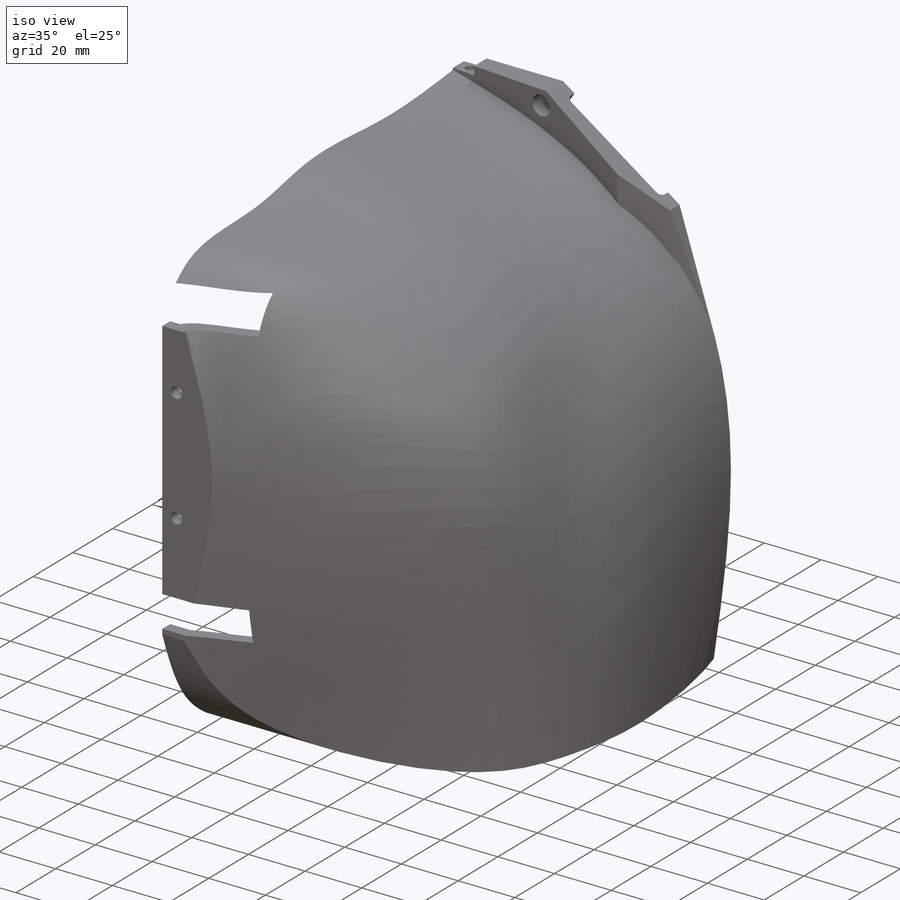
[diagram: iso view]
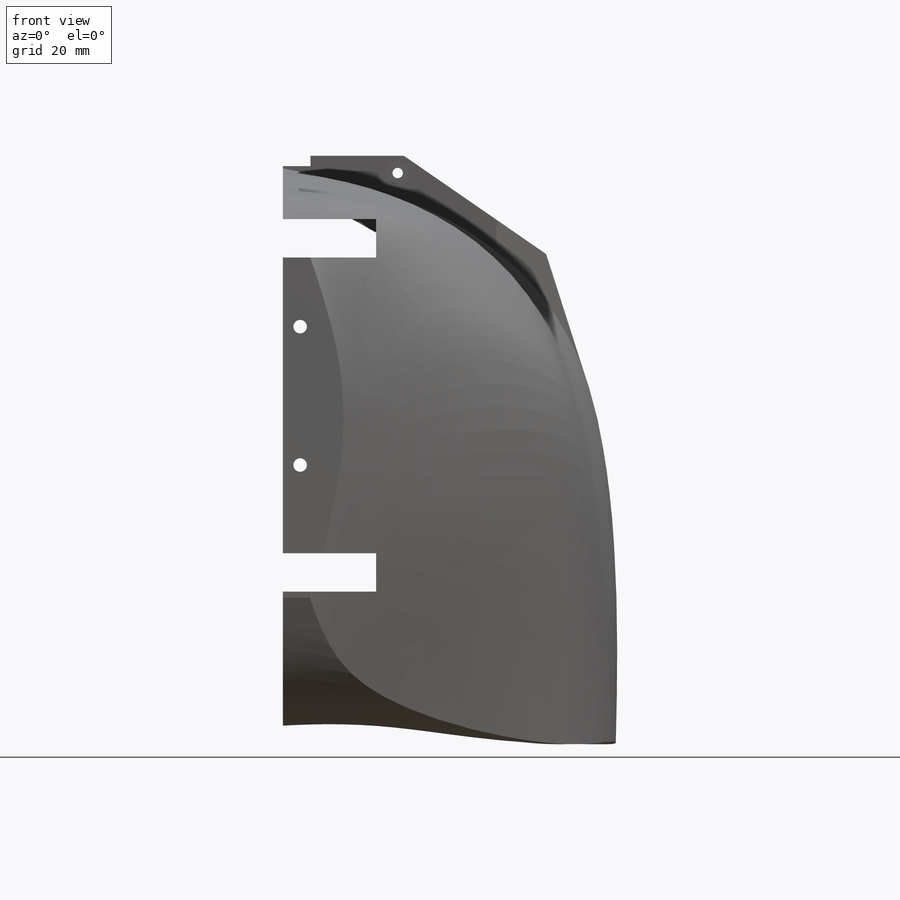
[diagram: front view]
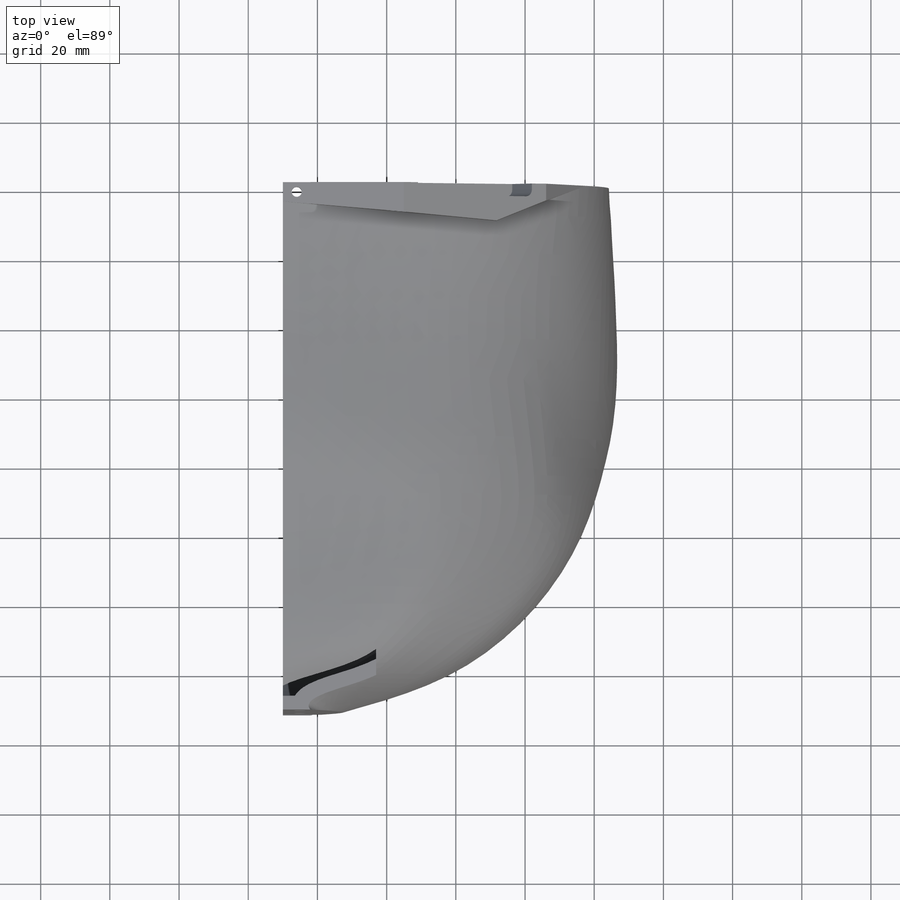
[diagram: top view]
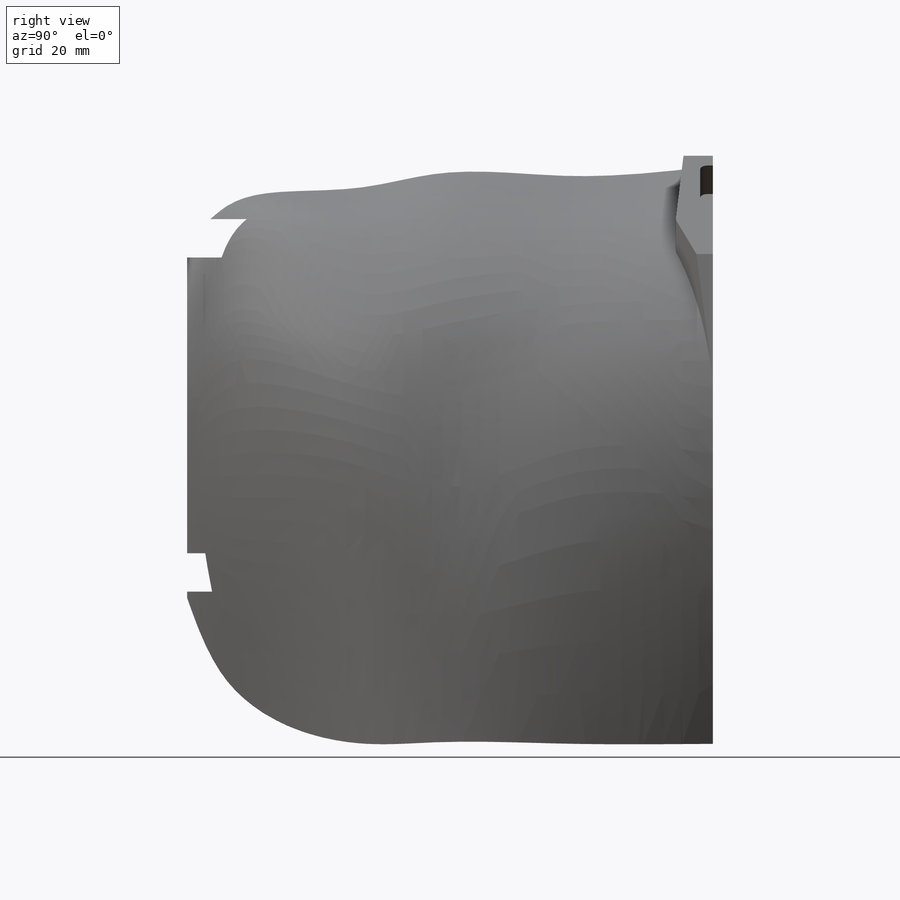
[diagram: right view]
SOLIDWORKS PART (.sldprt)
format: sldprt  version: not decoded by parser v0  size: 705,536 bytes
history: native  units: mm
features: sketch x14, cut_extrude x7, extrude x3, hole x2, material x1, plane x1, fillet x1 (+14 scaffold rows collapsed)
feature tree (43):
  scaffold x14  (default folders/planes/origin — collapsed)
  material  "ABS"
  sketch  "Sketch1"
  extrude  "Extrude1"  Depth=4mm
  plane  "Plane1"
  sketch  "Sketch7"  dims[c1.D1=3.0mm c1.D2=5.0mm c1.D3=9.0mm c2.D2=5.0mm]
  cut_extrude  "Cut-Extrude1"  Depth=18mm
  sketch  "Sketch8"  dims[D1=6.8mm]
  cut_extrude  "Cut-Extrude2"  Depth=5mm
  sketch  "Sketch10"  dims[c1.D1=2.0mm c1.D2=2.0mm c2.D1=2.0mm]
  cut_extrude  "Extrude2"  Depth=3.5mm
  sketch  "Sketch12"  dims[D1=8.0mm D2=7.0mm]
  cut_extrude  "Extrude4"  Depth=3mm
  sketch  "Sketch15"
  extrude  "Extrude5"  [1 undecoded]
  hole  "Ø2.9 (2.9) Diameter Hole1"  Diameter=2.9mm Depth=10mm
  sketch  "3DSketch2"
  sketch  "Sketch14"  dims[hole-wizard template sketch: 50 standard entries collapsed; hole parameters above]
  sketch  "Sketch17"  dims[D1=5.0mm D2=2.0mm]
  extrude  "Extrude8"  Depth=4mm
  sketch  "Sketch18"  dims[D1=2.9mm D2=2.9mm]
  cut_extrude  "Cut-Extrude3"  Depth=14mm
  sketch  "Sketch19"  dims[D1=5.0mm D2=40.0mm]
  cut_extrude  "Extrude9"  Depth=10mm
  fillet  "Fillet1"  Radius=2mm
  hole  "Ø3.9 (3.9) Diameter Hole1"  Diameter=3.9mm Depth=54.5mm
  sketch  "3DSketch3"  dims[c1.D1=5.0mm c1.D2=40.0mm c1.D3=~7.920134mm c2.D3=90.0deg c3.D3=20.0mm]
  sketch  "Sketch20"  dims[hole-wizard template sketch: 47 standard entries collapsed; hole parameters kept: c15.Hole Depth=54.5mm c15.D3=~14.816244mm c15.Drill Angle=180.0deg]
  sketch  "Sketch21"
  cut_extrude  "Extrude10"  Depth=10mm
decode coverage: 22 of 27 modeling features carry decoded parameters
note: ~ marks probable driven/reference dimensions
note: 1 parameter value undecoded
note: suppression state not decoded; provenance and decode notes live in map.json
